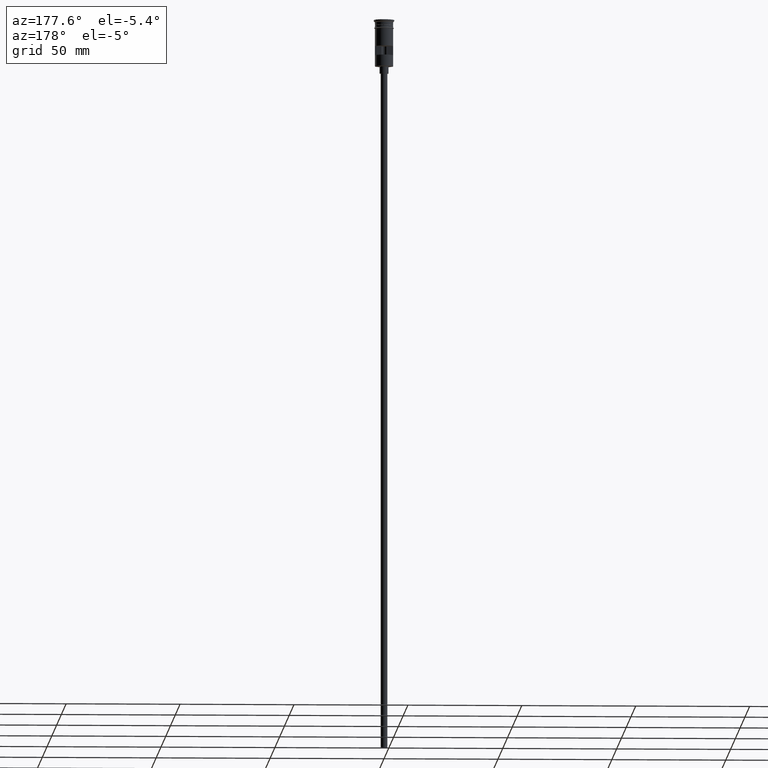
[diagram: clean part render]
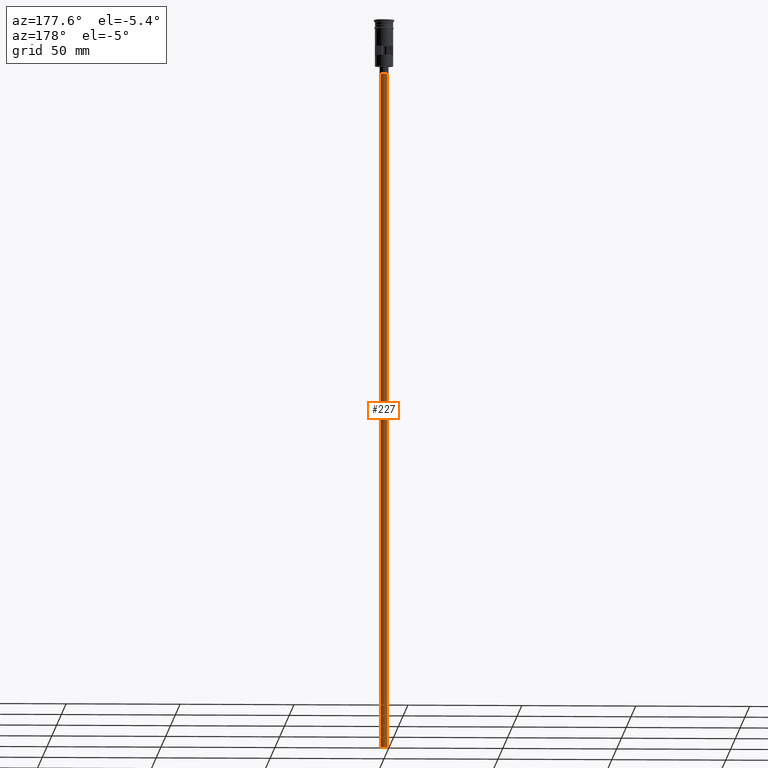
[diagram: same view with one face highlighted and labeled with its STEP entity id]
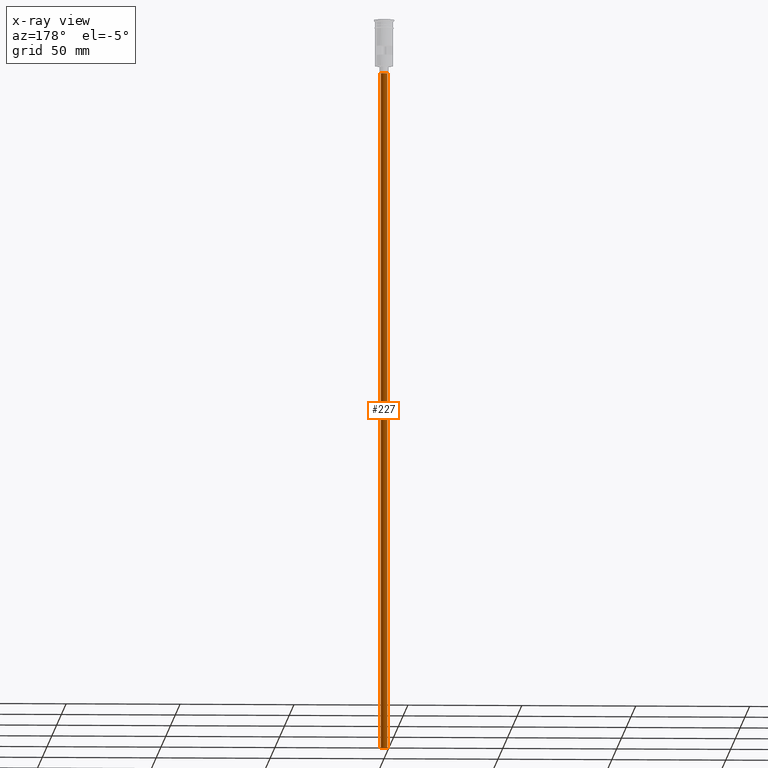
[diagram: x-ray of the same camera — body ghosted, the highlighted face saturated]
A machine part, auxiliary view. The second image highlights one B-rep face of the part: STEP entity #227.
The next image is the same camera in x-ray: the body ghosted, the highlighted face saturated — about 0% of this face is hidden behind the body in this view.
In plain terms, the highlighted cylindrical surface (edge-blend (fillet) strip) has radius 1.5 mm, axis along (-0, -0, 1).
Its self-contained STEP definition (entity closure, byte-faithful):
#77 = CIRCLE ( 'NONE', #1109, 1.500000000000000222 ) ;
#108 = VERTEX_POINT ( 'NONE', #328 ) ;
#170 = VERTEX_POINT ( 'NONE', #420 ) ;
#181 = ORIENTED_EDGE ( 'NONE', *, *, #1542, .F. ) ;
#214 = ORIENTED_EDGE ( 'NONE', *, *, #553, .T. ) ;
#227 = ADVANCED_FACE ( 'NONE', ( #361 ), #460, .T. ) ;
#289 = LINE ( 'NONE', #809, #1195 ) ;
#327 = CIRCLE ( 'NONE', #1220, 1.500000000000000222 ) ;
#328 = CARTESIAN_POINT ( 'NONE',  ( -1.500000000000000222, 1.836970198721030181E-16, -320.5000000000000000 ) ) ;
#361 = FACE_OUTER_BOUND ( 'NONE', #715, .T. ) ;
#419 = DIRECTION ( 'NONE',  ( -1.000000000000000000, 0.000000000000000000, 0.000000000000000000 ) ) ;
#420 = CARTESIAN_POINT ( 'NONE',  ( 1.500000000000000222, 0.000000000000000000, -23.49999999999999645 ) ) ;
#460 = CYLINDRICAL_SURFACE ( 'NONE', #599, 1.500000000000000222 ) ;
#553 = EDGE_CURVE ( 'NONE', #645, #170, #77, .T. ) ;
#558 = DIRECTION ( 'NONE',  ( -1.000000000000000000, 0.000000000000000000, 0.000000000000000000 ) ) ;
#580 = LINE ( 'NONE', #1209, #1136 ) ;
#599 = AXIS2_PLACEMENT_3D ( 'NONE', #1077, #1583, #1087 ) ;
#635 = VERTEX_POINT ( 'NONE', #826 ) ;
#645 = VERTEX_POINT ( 'NONE', #813 ) ;
#685 = CARTESIAN_POINT ( 'NONE',  ( 0.000000000000000000, 0.000000000000000000, -23.49999999999999645 ) ) ;
#694 = DIRECTION ( 'NONE',  ( -0.000000000000000000, -0.000000000000000000, 1.000000000000000000 ) ) ;
#715 = EDGE_LOOP ( 'NONE', ( #181, #1369, #214, #771 ) ) ;
#771 = ORIENTED_EDGE ( 'NONE', *, *, #1167, .F. ) ;
#809 = CARTESIAN_POINT ( 'NONE',  ( -1.500000000000000222, 1.836970198721030181E-16, -320.5000000000000000 ) ) ;
#813 = CARTESIAN_POINT ( 'NONE',  ( -1.500000000000000222, 1.836970198721030181E-16, -23.49999999999999645 ) ) ;
#826 = CARTESIAN_POINT ( 'NONE',  ( 1.500000000000000222, 0.000000000000000000, -320.5000000000000000 ) ) ;
#1035 = DIRECTION ( 'NONE',  ( 0.000000000000000000, 0.000000000000000000, -1.000000000000000000 ) ) ;
#1069 = DIRECTION ( 'NONE',  ( -0.000000000000000000, -0.000000000000000000, 1.000000000000000000 ) ) ;
#1077 = CARTESIAN_POINT ( 'NONE',  ( 0.000000000000000000, 0.000000000000000000, -320.5000000000000000 ) ) ;
#1087 = DIRECTION ( 'NONE',  ( 1.000000000000000000, 0.000000000000000000, 0.000000000000000000 ) ) ;
#1109 = AXIS2_PLACEMENT_3D ( 'NONE', #685, #1035, #558 ) ;
#1136 = VECTOR ( 'NONE', #1069, 1000.000000000000000 ) ;
#1167 = EDGE_CURVE ( 'NONE', #635, #170, #580, .T. ) ;
#1194 = CARTESIAN_POINT ( 'NONE',  ( 0.000000000000000000, 0.000000000000000000, -320.5000000000000000 ) ) ;
#1195 = VECTOR ( 'NONE', #694, 1000.000000000000000 ) ;
#1209 = CARTESIAN_POINT ( 'NONE',  ( 1.500000000000000222, 0.000000000000000000, -320.5000000000000000 ) ) ;
#1220 = AXIS2_PLACEMENT_3D ( 'NONE', #1194, #1522, #419 ) ;
#1369 = ORIENTED_EDGE ( 'NONE', *, *, #1549, .T. ) ;
#1522 = DIRECTION ( 'NONE',  ( 0.000000000000000000, 0.000000000000000000, -1.000000000000000000 ) ) ;
#1542 = EDGE_CURVE ( 'NONE', #108, #635, #327, .T. ) ;
#1549 = EDGE_CURVE ( 'NONE', #108, #645, #289, .T. ) ;
#1583 = DIRECTION ( 'NONE',  ( -0.000000000000000000, -0.000000000000000000, 1.000000000000000000 ) ) ;